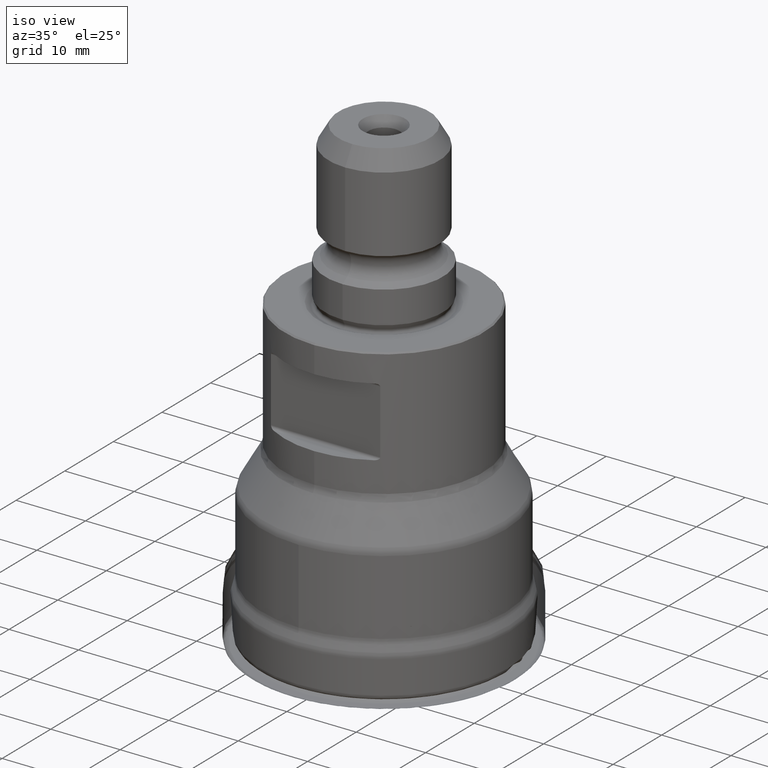
[diagram: clean part render]
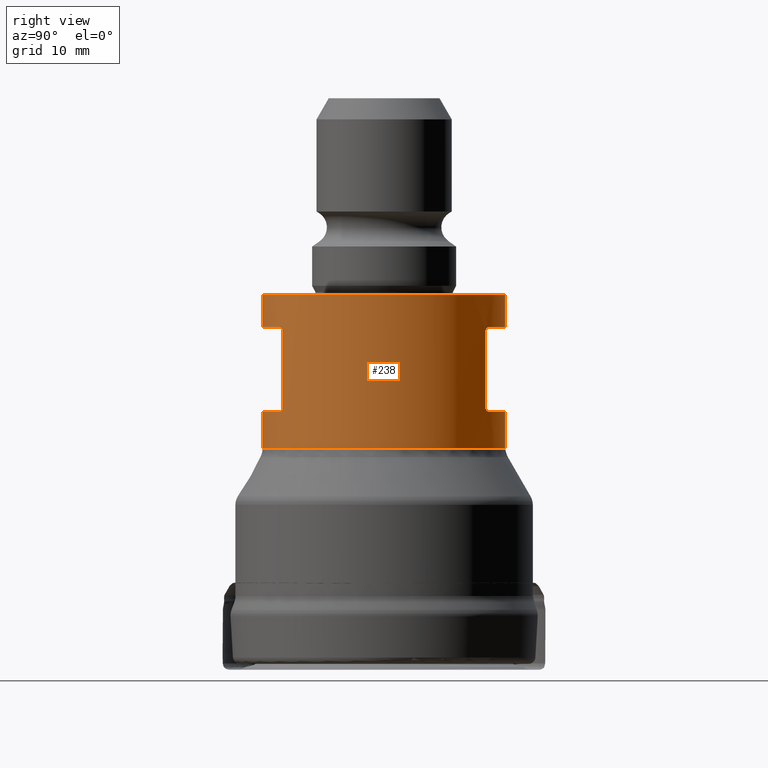
[diagram: tour spotlight — one face highlighted and labeled with its STEP entity id]
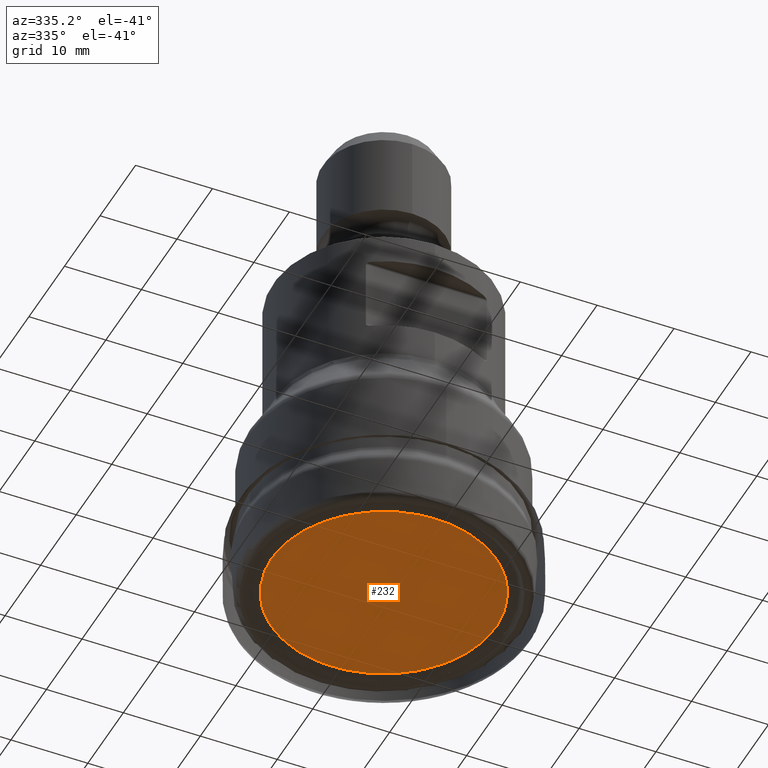
[diagram: tour spotlight — one face highlighted and labeled with its STEP entity id]
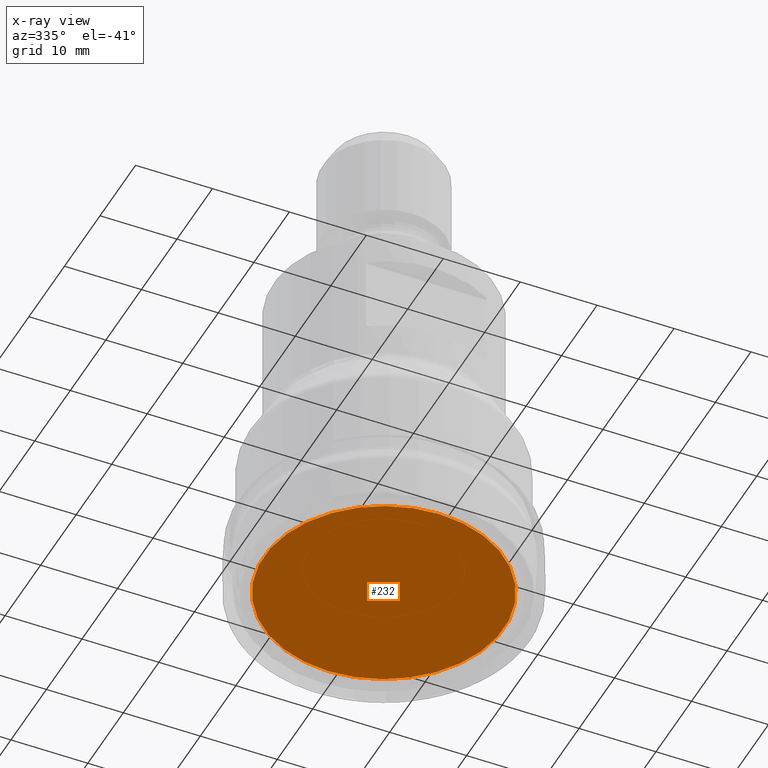
[diagram: x-ray of the same camera — body ghosted, this tour face saturated]
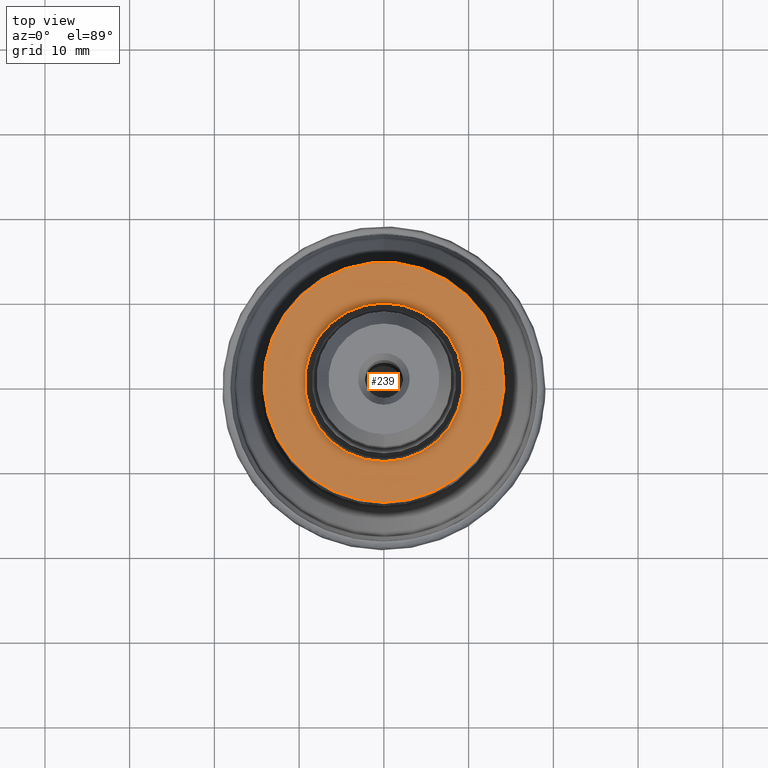
[diagram: tour spotlight — one face highlighted and labeled with its STEP entity id]
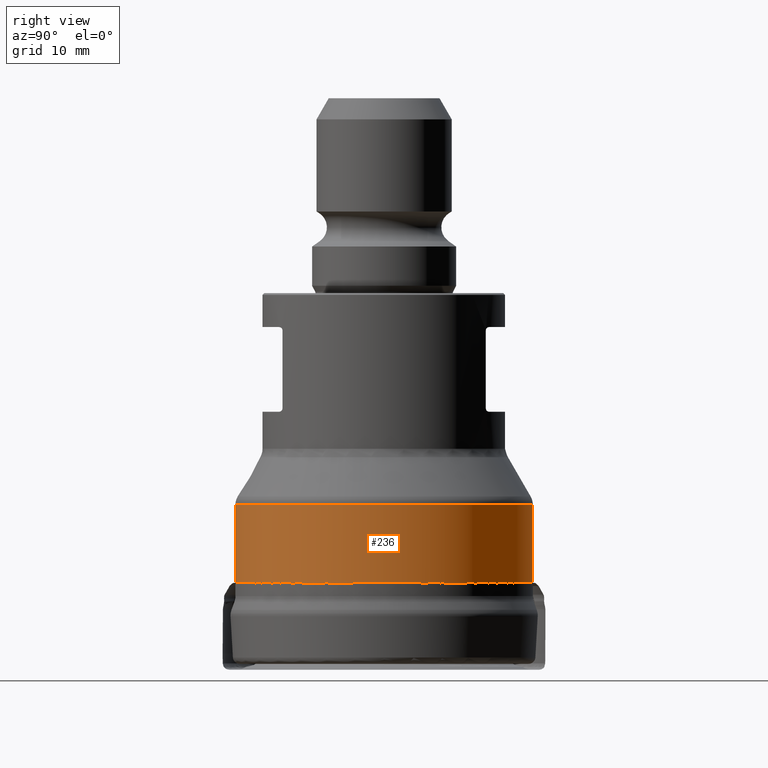
[diagram: tour spotlight — one face highlighted and labeled with its STEP entity id]
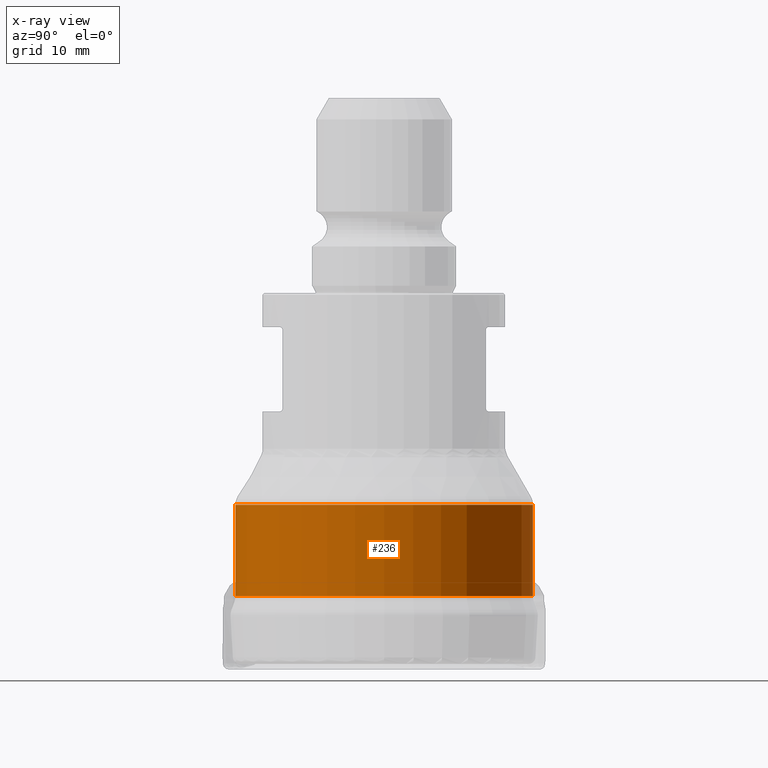
[diagram: x-ray of the same camera — body ghosted, this tour face saturated]
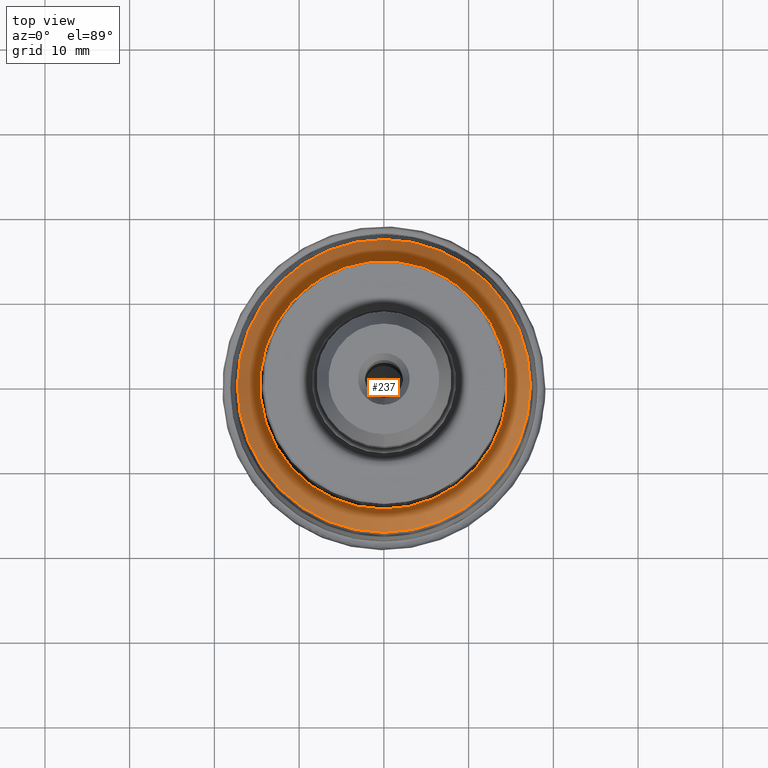
[diagram: tour spotlight — one face highlighted and labeled with its STEP entity id]
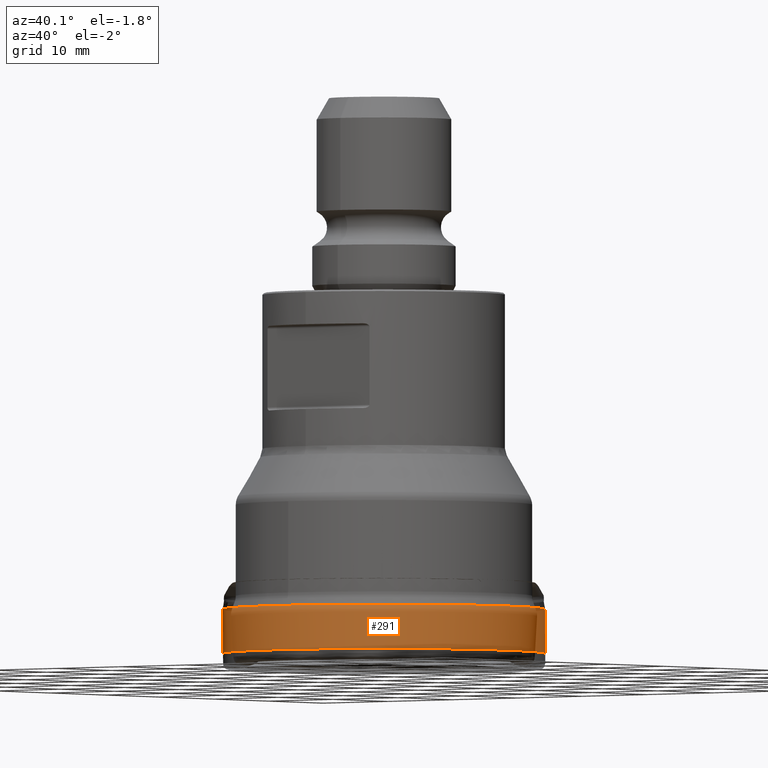
[diagram: tour spotlight — one face highlighted and labeled with its STEP entity id]
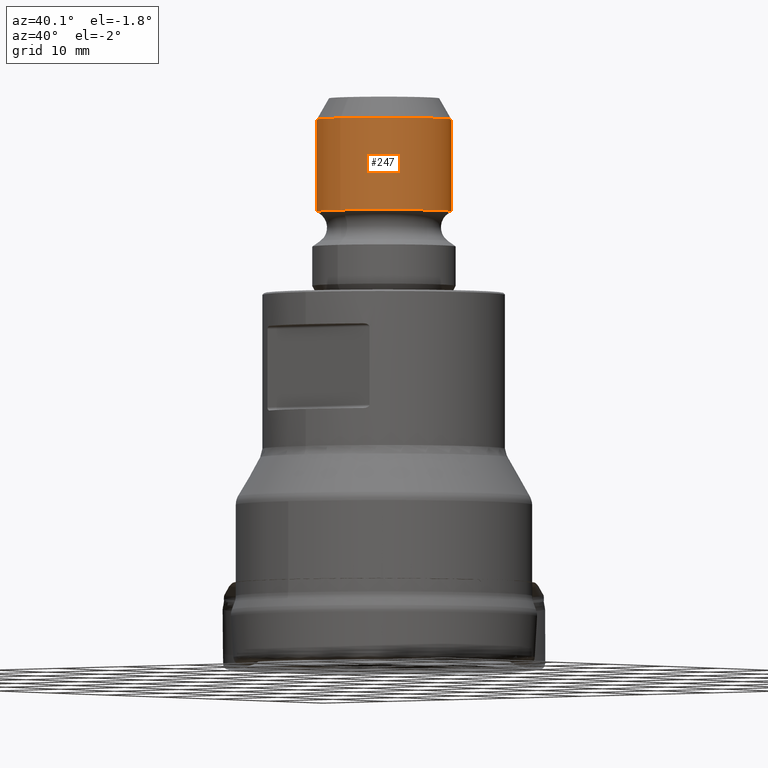
[diagram: tour spotlight — one face highlighted and labeled with its STEP entity id]
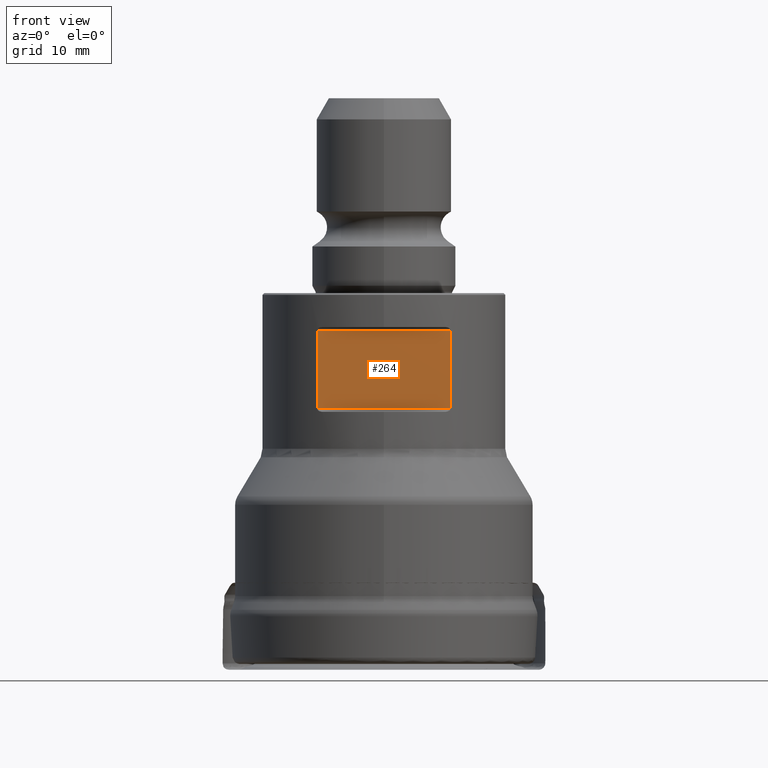
[diagram: tour spotlight — one face highlighted and labeled with its STEP entity id]
A machine part: a face-by-face anatomy tour. The part has 66 B-rep faces; the first image is the clean iso view, then the 8 largest visible faces are spotlighted one at a time (largest first), each with its STEP entity span.

Face 1 — right view, entity #238. In plain terms, the highlighted cylindrical surface (bore or boss wall) has radius 14.351 mm, axis along (0, 0, 1).
Definition (entity closure, byte-faithful):
#179=LINE('',#1596,#194);
#180=LINE('',#1637,#195);
#181=LINE('',#1678,#196);
#182=LINE('',#1719,#197);
#194=VECTOR('',#1106,1.);
#195=VECTOR('',#1109,1.);
#196=VECTOR('',#1112,1.);
#197=VECTOR('',#1115,1.);
#210=CYLINDRICAL_SURFACE('',#991,14.351);
#238=ADVANCED_FACE('',(#320,#321,#322,#323),#210,.T.);
#320=FACE_BOUND('',#434,.T.);
#321=FACE_BOUND('',#435,.T.);
#322=FACE_BOUND('',#436,.T.);
#323=FACE_BOUND('',#437,.T.);
#434=EDGE_LOOP('',(#556,#557,#558,#559,#560,#561,#562,#563));
#435=EDGE_LOOP('',(#564,#565,#566,#567,#568,#569,#570,#571));
#436=EDGE_LOOP('',(#572));
#437=EDGE_LOOP('',(#573));
#556=ORIENTED_EDGE('',*,*,#787,.F.);
#557=ORIENTED_EDGE('',*,*,#788,.F.);
#558=ORIENTED_EDGE('',*,*,#789,.F.);
#559=ORIENTED_EDGE('',*,*,#790,.F.);
#560=ORIENTED_EDGE('',*,*,#791,.F.);
#561=ORIENTED_EDGE('',*,*,#792,.F.);
#562=ORIENTED_EDGE('',*,*,#793,.F.);
#563=ORIENTED_EDGE('',*,*,#794,.F.);
#564=ORIENTED_EDGE('',*,*,#795,.F.);
#565=ORIENTED_EDGE('',*,*,#796,.F.);
#566=ORIENTED_EDGE('',*,*,#797,.F.);
#567=ORIENTED_EDGE('',*,*,#798,.F.);
#568=ORIENTED_EDGE('',*,*,#799,.F.);
#569=ORIENTED_EDGE('',*,*,#800,.F.);
#570=ORIENTED_EDGE('',*,*,#801,.F.);
#571=ORIENTED_EDGE('',*,*,#802,.F.);
#572=ORIENTED_EDGE('',*,*,#803,.T.);
#573=ORIENTED_EDGE('',*,*,#804,.T.);
#714=VERTEX_POINT('',#1594);
#715=VERTEX_POINT('',#1595);
#716=VERTEX_POINT('',#1597);
#717=VERTEX_POINT('',#1617);
#718=VERTEX_POINT('',#1619);
#719=VERTEX_POINT('',#1636);
#720=VERTEX_POINT('',#1638);
#721=VERTEX_POINT('',#1658);
#722=VERTEX_POINT('',#1676);
#723=VERTEX_POINT('',#1677);
#724=VERTEX_POINT('',#1679);
#725=VERTEX_POINT('',#1699);
#726=VERTEX_POINT('',#1701);
#727=VERTEX_POINT('',#1718);
#728=VERTEX_POINT('',#1720);
#729=VERTEX_POINT('',#1740);
#730=VERTEX_POINT('',#1743);
#731=VERTEX_POINT('',#1745);
#787=EDGE_CURVE('',#714,#715,#937,.T.);
#788=EDGE_CURVE('',#716,#714,#179,.T.);
#789=EDGE_CURVE('',#717,#716,#938,.T.);
#790=EDGE_CURVE('',#718,#717,#866,.T.);
#791=EDGE_CURVE('',#719,#718,#939,.T.);
#792=EDGE_CURVE('',#720,#719,#180,.T.);
#793=EDGE_CURVE('',#721,#720,#940,.T.);
#794=EDGE_CURVE('',#715,#721,#867,.T.);
#795=EDGE_CURVE('',#722,#723,#941,.T.);
#796=EDGE_CURVE('',#724,#722,#181,.T.);
#797=EDGE_CURVE('',#725,#724,#942,.T.);
#798=EDGE_CURVE('',#726,#725,#868,.T.);
#799=EDGE_CURVE('',#727,#726,#943,.T.);
#800=EDGE_CURVE('',#728,#727,#182,.T.);
#801=EDGE_CURVE('',#729,#728,#944,.T.);
#802=EDGE_CURVE('',#723,#729,#869,.T.);
#803=EDGE_CURVE('',#730,#730,#870,.T.);
#804=EDGE_CURVE('',#731,#731,#871,.T.);
#866=CIRCLE('',#985,14.351);
#867=CIRCLE('',#986,14.351);
#868=CIRCLE('',#987,14.351);
#869=CIRCLE('',#988,14.351);
#870=CIRCLE('',#989,14.351);
#871=CIRCLE('',#990,14.351);
#937=B_SPLINE_CURVE_WITH_KNOTS('',3,(#1578,#1579,#1580,#1581,#1582,#1583,
#1584,#1585,#1586,#1587,#1588,#1589,#1590,#1591,#1592,#1593),
 .UNSPECIFIED.,.F.,.F.,(4,3,3,3,3,4),(0.,0.0829971058057202,0.165298494452553,
0.304093107345202,0.539202657462015,1.),.UNSPECIFIED.);
#938=B_SPLINE_CURVE_WITH_KNOTS('',3,(#1598,#1599,#1600,#1601,#1602,#1603,
#1604,#1605,#1606,#1607,#1608,#1609,#1610,#1611,#1612,#1613,#1614,#1615,
#1616),.UNSPECIFIED.,.F.,.F.,(4,3,3,3,3,3,4),(0.,0.435512366815006,0.601766218517153,
0.769567222104373,0.872602562670462,0.96029760340768,1.),.UNSPECIFIED.);
#939=B_SPLINE_CURVE_WITH_KNOTS('',3,(#1620,#1621,#1622,#1623,#1624,#1625,
#1626,#1627,#1628,#1629,#1630,#1631,#1632,#1633,#1634,#1635),
 .UNSPECIFIED.,.F.,.F.,(4,3,3,3,3,4),(0.,0.0829971058057228,0.16529849445256,
0.304093107345228,0.539202657462062,1.),.UNSPECIFIED.);
#940=B_SPLINE_CURVE_WITH_KNOTS('',3,(#1639,#1640,#1641,#1642,#1643,#1644,
#1645,#1646,#1647,#1648,#1649,#1650,#1651,#1652,#1653,#1654,#1655,#1656,
#1657),.UNSPECIFIED.,.F.,.F.,(4,3,3,3,3,3,4),(0.,0.435512366814994,0.601766218517142,
0.769567222104363,0.872602562670449,0.960297603407666,1.),.UNSPECIFIED.);
#941=B_SPLINE_CURVE_WITH_KNOTS('',3,(#1660,#1661,#1662,#1663,#1664,#1665,
#1666,#1667,#1668,#1669,#1670,#1671,#1672,#1673,#1674,#1675),
 .UNSPECIFIED.,.F.,.F.,(4,3,3,3,3,4),(0.,0.0829971058057194,0.165298494452553,
0.304093107345207,0.539202657462025,1.),.UNSPECIFIED.);
#942=B_SPLINE_CURVE_WITH_KNOTS('',3,(#1680,#1681,#1682,#1683,#1684,#1685,
#1686,#1687,#1688,#1689,#1690,#1691,#1692,#1693,#1694,#1695,#1696,#1697,
#1698),.UNSPECIFIED.,.F.,.F.,(4,3,3,3,3,3,4),(0.,0.435512366815006,0.601766218517161,
0.769567222104385,0.872602562670471,0.960297603407687,1.),.UNSPECIFIED.);
#943=B_SPLINE_CURVE_WITH_KNOTS('',3,(#1702,#1703,#1704,#1705,#1706,#1707,
#1708,#1709,#1710,#1711,#1712,#1713,#1714,#1715,#1716,#1717),
 .UNSPECIFIED.,.F.,.F.,(4,3,3,3,3,4),(0.,0.0829971058057233,0.165298494452562,
0.304093107345216,0.539202657462044,1.),.UNSPECIFIED.);
#944=B_SPLINE_CURVE_WITH_KNOTS('',3,(#1721,#1722,#1723,#1724,#1725,#1726,
#1727,#1728,#1729,#1730,#1731,#1732,#1733,#1734,#1735,#1736,#1737,#1738,
#1739),.UNSPECIFIED.,.F.,.F.,(4,3,3,3,3,3,4),(0.,0.435512366814993,0.601766218517143,
0.769567222104368,0.872602562670451,0.960297603407662,1.),.UNSPECIFIED.);
#985=AXIS2_PLACEMENT_3D('',#1618,#1107,#1108);
#986=AXIS2_PLACEMENT_3D('',#1659,#1110,#1111);
#987=AXIS2_PLACEMENT_3D('',#1700,#1113,#1114);
#988=AXIS2_PLACEMENT_3D('',#1741,#1116,#1117);
#989=AXIS2_PLACEMENT_3D('',#1742,#1118,#1119);
#990=AXIS2_PLACEMENT_3D('',#1744,#1120,#1121);
#991=AXIS2_PLACEMENT_3D('',#1746,#1122,#1123);
#1106=DIRECTION('',(0.,-1.17145536458252E-15,-1.));
#1107=DIRECTION('',(0.,-1.17145536458252E-15,-1.));
#1108=DIRECTION('',(0.,-1.,9.67025838465226E-16));
#1109=DIRECTION('',(0.,1.17145536458252E-15,1.));
#1110=DIRECTION('',(0.,1.17145536458252E-15,1.));
#1111=DIRECTION('',(0.,1.,-1.20878229808153E-15));
#1112=DIRECTION('',(0.,-1.17145536458252E-15,-1.));
#1113=DIRECTION('',(0.,-1.17145536458252E-15,-1.));
#1114=DIRECTION('',(0.,-1.,9.67025838465226E-16));
#1115=DIRECTION('',(0.,1.17145536458252E-15,1.));
#1116=DIRECTION('',(0.,1.17145536458252E-15,1.));
#1117=DIRECTION('',(0.,1.,-1.20878229808153E-15));
#1118=DIRECTION('',(0.,-1.17145536458252E-15,-1.));
#1119=DIRECTION('',(0.,-1.,9.67025838465226E-16));
#1120=DIRECTION('',(0.,1.17145536458252E-15,1.));
#1121=DIRECTION('',(0.,-1.,1.20878229808153E-15));
#1122=DIRECTION('',(0.,1.17145536458252E-15,1.));
#1123=DIRECTION('',(0.,-1.,1.17145536458252E-15));
#1578=CARTESIAN_POINT('',(7.87090852443352,12.,30.85));
#1579=CARTESIAN_POINT('',(7.87090852443352,12.,30.8240322290177));
#1580=CARTESIAN_POINT('',(7.86687749301789,12.0026461944081,30.7977413843242));
#1581=CARTESIAN_POINT('',(7.85957575356462,12.0074256180907,30.7732839347432));
#1582=CARTESIAN_POINT('',(7.8523090087322,12.0121821357081,30.7489437009545));
#1583=CARTESIAN_POINT('',(7.84173683060234,12.0190927297264,30.725826348514));
#1584=CARTESIAN_POINT('',(7.82914982339087,12.0272862293578,30.7047951613284));
#1585=CARTESIAN_POINT('',(7.80804791983691,12.0410224921632,30.6695367336369));
#1586=CARTESIAN_POINT('',(7.78087951408832,12.0586206559712,30.6391084719029));
#1587=CARTESIAN_POINT('',(7.75151901647613,12.0774647147988,30.613418111851));
#1588=CARTESIAN_POINT('',(7.70195909105648,12.1092731045078,30.5700533043128));
#1589=CARTESIAN_POINT('',(7.64468901891067,12.1455636071234,30.5382902735915));
#1590=CARTESIAN_POINT('',(7.58597245533121,12.1821271913799,30.5145429397613));
#1591=CARTESIAN_POINT('',(7.47167272849779,12.2533031498795,30.4683155448944));
#1592=CARTESIAN_POINT('',(7.34735730916321,12.3283335852071,30.45));
#1593=CARTESIAN_POINT('',(7.22434779063137,12.4,30.45));
#1594=CARTESIAN_POINT('',(7.87090852443352,12.,30.85));
#1595=CARTESIAN_POINT('',(7.22434779063137,12.4,30.45));
#1596=CARTESIAN_POINT('',(7.87090852443351,12.,-1.19757962038181E-14));
#1597=CARTESIAN_POINT('',(7.87090852443352,12.,40.05));
#1598=CARTESIAN_POINT('',(7.22434779063137,12.4,40.45));
#1599=CARTESIAN_POINT('',(7.34073896794431,12.3321894883331,40.45));
#1600=CARTESIAN_POINT('',(7.45806175716986,12.2615252914713,40.4334933739461));
#1601=CARTESIAN_POINT('',(7.56716152291767,12.1938208731339,40.3927683877559));
#1602=CARTESIAN_POINT('',(7.60922910680053,12.1677148473498,40.3770653130432));
#1603=CARTESIAN_POINT('',(7.65038818931735,12.1418638913689,40.3575197134806));
#1604=CARTESIAN_POINT('',(7.68905559151899,12.117327473933,40.3330127965426));
#1605=CARTESIAN_POINT('',(7.72792286213209,12.0926642299068,40.3083792054999));
#1606=CARTESIAN_POINT('',(7.76498824079194,12.0688659768356,40.2782809305083));
#1607=CARTESIAN_POINT('',(7.79603384607914,12.0487782480544,40.2414243478773));
#1608=CARTESIAN_POINT('',(7.81516799510663,12.036397700387,40.2187087545371));
#1609=CARTESIAN_POINT('',(7.83226831836126,12.0252656100682,40.1929753481524));
#1610=CARTESIAN_POINT('',(7.84521353459981,12.0168142865126,40.164754995443));
#1611=CARTESIAN_POINT('',(7.85621846575662,12.0096296839382,40.1407644314335));
#1612=CARTESIAN_POINT('',(7.86436481375197,12.004290418292,40.1143991819155));
#1613=CARTESIAN_POINT('',(7.86823088391459,12.0017558614318,40.0874380300775));
#1614=CARTESIAN_POINT('',(7.8700010488916,12.0005953590102,40.0750932756587));
#1615=CARTESIAN_POINT('',(7.87090852443368,12.,40.0625249036555));
#1616=CARTESIAN_POINT('',(7.87090852443369,12.,40.05));
#1617=CARTESIAN_POINT('',(7.22434779063137,12.4,40.45));
#1618=CARTESIAN_POINT('',(0.,4.73853694973631E-14,40.45));
#1619=CARTESIAN_POINT('',(-7.22434779063131,12.4000000000001,40.45));
#1620=CARTESIAN_POINT('',(-7.87090852443347,12.0000000000001,40.05));
#1621=CARTESIAN_POINT('',(-7.87090852443347,12.0000000000001,40.0759677709822));
#1622=CARTESIAN_POINT('',(-7.86687749301785,12.0026461944081,40.1022586156758));
#1623=CARTESIAN_POINT('',(-7.85957575356457,12.0074256180907,40.1267160652568));
#1624=CARTESIAN_POINT('',(-7.85230900873216,12.0121821357081,40.1510562990454));
#1625=CARTESIAN_POINT('',(-7.84173683060229,12.0190927297265,40.174173651486));
#1626=CARTESIAN_POINT('',(-7.82914982339081,12.0272862293578,40.1952048386716));
#1627=CARTESIAN_POINT('',(-7.80804791983685,12.0410224921633,40.230463266363));
#1628=CARTESIAN_POINT('',(-7.78087951408825,12.0586206559712,40.2608915280971));
#1629=CARTESIAN_POINT('',(-7.75151901647606,12.0774647147988,40.286581888149));
#1630=CARTESIAN_POINT('',(-7.7019590910564,12.1092731045079,40.3299466956872));
#1631=CARTESIAN_POINT('',(-7.64468901891059,12.1455636071234,40.3617097264085));
#1632=CARTESIAN_POINT('',(-7.58597245533112,12.1821271913799,40.3854570602387));
#1633=CARTESIAN_POINT('',(-7.47167272849771,12.2533031498795,40.4316844551055));
#1634=CARTESIAN_POINT('',(-7.34735730916314,12.3283335852072,40.45));
#1635=CARTESIAN_POINT('',(-7.22434779063131,12.4000000000001,40.45));
#1636=CARTESIAN_POINT('',(-7.87090852443347,12.0000000000001,40.05));
#1637=CARTESIAN_POINT('',(-7.87090852443346,12.,-1.19757962038181E-14));
#1638=CARTESIAN_POINT('',(-7.87090852443347,12.0000000000001,30.85));
#1639=CARTESIAN_POINT('',(-7.22434779063131,12.4000000000001,30.45));
#1640=CARTESIAN_POINT('',(-7.34073896794426,12.3321894883331,30.45));
#1641=CARTESIAN_POINT('',(-7.45806175716981,12.2615252914713,30.4665066260539));
#1642=CARTESIAN_POINT('',(-7.56716152291761,12.1938208731339,30.507231612244));
#1643=CARTESIAN_POINT('',(-7.60922910680047,12.1677148473498,30.5229346869568));
#1644=CARTESIAN_POINT('',(-7.65038818931729,12.1418638913689,30.5424802865194));
#1645=CARTESIAN_POINT('',(-7.68905559151893,12.117327473933,30.5669872034573));
#1646=CARTESIAN_POINT('',(-7.72792286213204,12.0926642299068,30.5916207945001));
#1647=CARTESIAN_POINT('',(-7.76498824079189,12.0688659768356,30.6217190694917));
#1648=CARTESIAN_POINT('',(-7.79603384607909,12.0487782480544,30.6585756521227));
#1649=CARTESIAN_POINT('',(-7.81516799510658,12.036397700387,30.6812912454629));
#1650=CARTESIAN_POINT('',(-7.83226831836121,12.0252656100682,30.7070246518476));
#1651=CARTESIAN_POINT('',(-7.84521353459976,12.0168142865126,30.735245004557));
#1652=CARTESIAN_POINT('',(-7.85621846575656,12.0096296839382,30.7592355685665));
#1653=CARTESIAN_POINT('',(-7.86436481375192,12.0042904182921,30.7856008180844));
#1654=CARTESIAN_POINT('',(-7.86823088391453,12.0017558614319,30.8125619699225));
#1655=CARTESIAN_POINT('',(-7.87000104889154,12.0005953590102,30.8249067243413));
#1656=CARTESIAN_POINT('',(-7.87090852443346,12.0000000000001,30.8374750963445));
#1657=CARTESIAN_POINT('',(-7.87090852443347,12.0000000000001,30.85));
#1658=CARTESIAN_POINT('',(-7.22434779063131,12.4000000000001,30.45));
#1659=CARTESIAN_POINT('',(0.,3.56708158515379E-14,30.45));
#1660=CARTESIAN_POINT('',(-7.87090852443349,-12.,30.85));
#1661=CARTESIAN_POINT('',(-7.87090852443349,-12.,30.8240322290178));
#1662=CARTESIAN_POINT('',(-7.86687749301787,-12.002646194408,30.7977413843242));
#1663=CARTESIAN_POINT('',(-7.85957575356459,-12.0074256180906,30.7732839347432));
#1664=CARTESIAN_POINT('',(-7.85230900873218,-12.012182135708,30.7489437009546));
#1665=CARTESIAN_POINT('',(-7.84173683060232,-12.0190927297264,30.7258263485141));
#1666=CARTESIAN_POINT('',(-7.82914982339084,-12.0272862293577,30.7047951613284));
#1667=CARTESIAN_POINT('',(-7.80804791983688,-12.0410224921632,30.669536733637));
#1668=CARTESIAN_POINT('',(-7.78087951408829,-12.0586206559711,30.6391084719029));
#1669=CARTESIAN_POINT('',(-7.7515190164761,-12.0774647147987,30.613418111851));
#1670=CARTESIAN_POINT('',(-7.70195909105645,-12.1092731045078,30.5700533043128));
#1671=CARTESIAN_POINT('',(-7.64468901891063,-12.1455636071233,30.5382902735915));
#1672=CARTESIAN_POINT('',(-7.58597245533117,-12.1821271913798,30.5145429397613));
#1673=CARTESIAN_POINT('',(-7.47167272849776,-12.2533031498794,30.4683155448945));
#1674=CARTESIAN_POINT('',(-7.34735730916317,-12.3283335852071,30.45));
#1675=CARTESIAN_POINT('',(-7.22434779063134,-12.4,30.45));
#1676=CARTESIAN_POINT('',(-7.87090852443349,-12.,30.85));
#1677=CARTESIAN_POINT('',(-7.22434779063134,-12.4,30.45));
#1678=CARTESIAN_POINT('',(-7.87090852443348,-12.,1.61391325461625E-14));
#1679=CARTESIAN_POINT('',(-7.87090852443349,-12.,40.05));
#1680=CARTESIAN_POINT('',(-7.22434779063134,-12.4,40.45));
#1681=CARTESIAN_POINT('',(-7.34073896794428,-12.332189488333,40.45));
#1682=CARTESIAN_POINT('',(-7.45806175716983,-12.2615252914712,40.4334933739461));
#1683=CARTESIAN_POINT('',(-7.56716152291764,-12.1938208731338,40.392768387756));
#1684=CARTESIAN_POINT('',(-7.6092291068005,-12.1677148473497,40.3770653130432));
#1685=CARTESIAN_POINT('',(-7.65038818931732,-12.1418638913688,40.3575197134806));
#1686=CARTESIAN_POINT('',(-7.68905559151896,-12.1173274739329,40.3330127965427));
#1687=CARTESIAN_POINT('',(-7.72792286213207,-12.0926642299067,40.3083792054999));
#1688=CARTESIAN_POINT('',(-7.76498824079192,-12.0688659768355,40.2782809305083));
#1689=CARTESIAN_POINT('',(-7.79603384607912,-12.0487782480543,40.2414243478773));
#1690=CARTESIAN_POINT('',(-7.81516799510661,-12.0363977003869,40.2187087545371));
#1691=CARTESIAN_POINT('',(-7.83226831836124,-12.0252656100681,40.1929753481524));
#1692=CARTESIAN_POINT('',(-7.84521353459979,-12.0168142865125,40.164754995443));
#1693=CARTESIAN_POINT('',(-7.85621846575659,-12.0096296839381,40.1407644314335));
#1694=CARTESIAN_POINT('',(-7.86436481375195,-12.004290418292,40.1143991819156));
#1695=CARTESIAN_POINT('',(-7.86823088391456,-12.0017558614318,40.0874380300776));
#1696=CARTESIAN_POINT('',(-7.87000104889157,-12.0005953590101,40.0750932756587));
#1697=CARTESIAN_POINT('',(-7.87090852443366,-11.9999999999999,40.0625249036555));
#1698=CARTESIAN_POINT('',(-7.87090852443366,-11.9999999999999,40.0500000000001));
#1699=CARTESIAN_POINT('',(-7.22434779063134,-12.4,40.45));
#1700=CARTESIAN_POINT('',(0.,4.73853694973631E-14,40.45));
#1701=CARTESIAN_POINT('',(7.22434779063134,-12.4,40.45));
#1702=CARTESIAN_POINT('',(7.8709085244335,-12.,40.05));
#1703=CARTESIAN_POINT('',(7.8709085244335,-12.,40.0759677709823));
#1704=CARTESIAN_POINT('',(7.86687749301787,-12.002646194408,40.1022586156759));
#1705=CARTESIAN_POINT('',(7.8595757535646,-12.0074256180906,40.1267160652568));
#1706=CARTESIAN_POINT('',(7.85230900873218,-12.012182135708,40.1510562990455));
#1707=CARTESIAN_POINT('',(7.84173683060232,-12.0190927297263,40.174173651486));
#1708=CARTESIAN_POINT('',(7.82914982339084,-12.0272862293577,40.1952048386716));
#1709=CARTESIAN_POINT('',(7.80804791983688,-12.0410224921632,40.2304632663631));
#1710=CARTESIAN_POINT('',(7.78087951408829,-12.0586206559711,40.2608915280971));
#1711=CARTESIAN_POINT('',(7.7515190164761,-12.0774647147987,40.2865818881491));
#1712=CARTESIAN_POINT('',(7.70195909105644,-12.1092731045078,40.3299466956872));
#1713=CARTESIAN_POINT('',(7.64468901891063,-12.1455636071233,40.3617097264085));
#1714=CARTESIAN_POINT('',(7.58597245533117,-12.1821271913798,40.3854570602387));
#1715=CARTESIAN_POINT('',(7.47167272849776,-12.2533031498794,40.4316844551056));
#1716=CARTESIAN_POINT('',(7.34735730916317,-12.328333585207,40.45));
#1717=CARTESIAN_POINT('',(7.22434779063134,-12.4,40.45));
#1718=CARTESIAN_POINT('',(7.8709085244335,-12.,40.05));
#1719=CARTESIAN_POINT('',(7.87090852443349,-12.,1.61391325461625E-14));
#1720=CARTESIAN_POINT('',(7.87090852443349,-12.,30.85));
#1721=CARTESIAN_POINT('',(7.22434779063134,-12.4,30.45));
#1722=CARTESIAN_POINT('',(7.34073896794429,-12.332189488333,30.45));
#1723=CARTESIAN_POINT('',(7.45806175716984,-12.2615252914712,30.4665066260539));
#1724=CARTESIAN_POINT('',(7.56716152291764,-12.1938208731338,30.5072316122441));
#1725=CARTESIAN_POINT('',(7.6092291068005,-12.1677148473497,30.5229346869568));
#1726=CARTESIAN_POINT('',(7.65038818931732,-12.1418638913688,30.5424802865194));
#1727=CARTESIAN_POINT('',(7.68905559151896,-12.1173274739329,30.5669872034574));
#1728=CARTESIAN_POINT('',(7.72792286213207,-12.0926642299068,30.5916207945001));
#1729=CARTESIAN_POINT('',(7.76498824079192,-12.0688659768355,30.6217190694917));
#1730=CARTESIAN_POINT('',(7.79603384607912,-12.0487782480544,30.6585756521227));
#1731=CARTESIAN_POINT('',(7.81516799510661,-12.0363977003869,30.6812912454629));
#1732=CARTESIAN_POINT('',(7.83226831836124,-12.0252656100681,30.7070246518476));
#1733=CARTESIAN_POINT('',(7.84521353459979,-12.0168142865125,30.735245004557));
#1734=CARTESIAN_POINT('',(7.85621846575659,-12.0096296839381,30.7592355685666));
#1735=CARTESIAN_POINT('',(7.86436481375195,-12.004290418292,30.7856008180845));
#1736=CARTESIAN_POINT('',(7.86823088391456,-12.0017558614318,30.8125619699225));
#1737=CARTESIAN_POINT('',(7.87000104889157,-12.0005953590101,30.8249067243413));
#1738=CARTESIAN_POINT('',(7.87090852443349,-12.,30.8374750963446));
#1739=CARTESIAN_POINT('',(7.87090852443349,-12.,30.85));
#1740=CARTESIAN_POINT('',(7.22434779063134,-12.4,30.45));
#1741=CARTESIAN_POINT('',(0.,3.56708158515379E-14,30.45));
#1742=CARTESIAN_POINT('',(0.,5.18368998827767E-14,44.25));
#1743=CARTESIAN_POINT('',(0.,-14.3509999999999,44.25));
#1744=CARTESIAN_POINT('',(0.,3.05477239820776E-14,26.0767289182751));
#1745=CARTESIAN_POINT('',(0.,-14.351,26.0767289182751));
#1746=CARTESIAN_POINT('',(0.,0.,0.));

Face 2 — auxiliary view, entity #232. An x-ray twin of the same camera follows (body ghosted, this face saturated) — the face is partly hidden behind the body. In plain terms, the highlighted planar face has unit normal (0, -0, -1).
Definition (entity closure, byte-faithful):
#232=ADVANCED_FACE('',(#308,#309),#298,.T.);
#298=PLANE('',#969);
#308=FACE_BOUND('',#422,.T.);
#309=FACE_BOUND('',#423,.T.);
#422=EDGE_LOOP('',(#544));
#423=EDGE_LOOP('',(#545));
#544=ORIENTED_EDGE('',*,*,#775,.T.);
#545=ORIENTED_EDGE('',*,*,#776,.T.);
#702=VERTEX_POINT('',#1549);
#703=VERTEX_POINT('',#1551);
#775=EDGE_CURVE('',#702,#702,#854,.T.);
#776=EDGE_CURVE('',#703,#703,#855,.T.);
#854=CIRCLE('',#967,1.);
#855=CIRCLE('',#968,15.5849874975539);
#967=AXIS2_PLACEMENT_3D('',#1548,#1070,#1071);
#968=AXIS2_PLACEMENT_3D('',#1550,#1072,#1073);
#969=AXIS2_PLACEMENT_3D('',#1552,#1074,#1075);
#1070=DIRECTION('',(0.,1.17145536458252E-15,1.));
#1071=DIRECTION('',(0.,-1.,1.0842021724855E-15));
#1072=DIRECTION('',(0.,-1.17145536458252E-15,-1.));
#1073=DIRECTION('',(0.,1.,-1.16872705227484E-15));
#1074=DIRECTION('',(0.,-1.17145536458252E-15,-1.));
#1075=DIRECTION('',(0.,1.,-1.17137202715334E-15));
#1548=CARTESIAN_POINT('',(0.,1.28860090104078E-15,1.1));
#1549=CARTESIAN_POINT('',(0.,-0.999999999999999,1.1));
#1550=CARTESIAN_POINT('',(0.,1.28860090104078E-15,1.1));
#1551=CARTESIAN_POINT('',(0.,15.5849874975539,1.09999999999998));
#1552=CARTESIAN_POINT('',(16.2047914002725,1.28860090104078E-15,1.1));

Face 3 — top view, entity #239. In plain terms, the highlighted planar face has unit normal (0, 0, 1).
Definition (entity closure, byte-faithful):
#239=ADVANCED_FACE('',(#324,#325),#300,.T.);
#300=PLANE('',#994);
#324=FACE_BOUND('',#438,.T.);
#325=FACE_BOUND('',#439,.T.);
#438=EDGE_LOOP('',(#574));
#439=EDGE_LOOP('',(#575));
#574=ORIENTED_EDGE('',*,*,#805,.T.);
#575=ORIENTED_EDGE('',*,*,#806,.F.);
#732=VERTEX_POINT('',#1748);
#733=VERTEX_POINT('',#1750);
#805=EDGE_CURVE('',#732,#732,#872,.T.);
#806=EDGE_CURVE('',#733,#733,#873,.T.);
#872=CIRCLE('',#992,14.151);
#873=CIRCLE('',#993,9.36627222808008);
#992=AXIS2_PLACEMENT_3D('',#1747,#1124,#1125);
#993=AXIS2_PLACEMENT_3D('',#1749,#1126,#1127);
#994=AXIS2_PLACEMENT_3D('',#1751,#1128,#1129);
#1124=DIRECTION('',(0.,1.17145536458252E-15,1.));
#1125=DIRECTION('',(0.,-1.,9.80693082313226E-16));
#1126=DIRECTION('',(0.,1.17145536458252E-15,1.));
#1127=DIRECTION('',(0.,-1.,1.48167675141972E-15));
#1128=DIRECTION('',(0.,1.17145536458252E-15,1.));
#1129=DIRECTION('',(0.,-1.,1.17267306976032E-15));
#1747=CARTESIAN_POINT('',(0.,5.20711909556932E-14,44.45));
#1748=CARTESIAN_POINT('',(0.,-14.1509999999999,44.45));
#1749=CARTESIAN_POINT('',(0.,5.20711909556932E-14,44.45));
#1750=CARTESIAN_POINT('',(0.,-9.36627222808003,44.45));
#1751=CARTESIAN_POINT('',(9.36627222808008,5.20711909556932E-14,44.45));

Face 4 — right view, entity #236. An x-ray twin of the same camera follows (body ghosted, this face saturated) — the face is partly hidden behind the body. In plain terms, the highlighted cylindrical surface (bore or boss wall) has radius 17.55 mm, axis along (0, 0, 1).
Definition (entity closure, byte-faithful):
#209=CYLINDRICAL_SURFACE('',#981,17.55);
#236=ADVANCED_FACE('',(#316,#317),#209,.T.);
#316=FACE_BOUND('',#430,.T.);
#317=FACE_BOUND('',#431,.T.);
#430=EDGE_LOOP('',(#552));
#431=EDGE_LOOP('',(#553));
#552=ORIENTED_EDGE('',*,*,#783,.T.);
#553=ORIENTED_EDGE('',*,*,#784,.T.);
#710=VERTEX_POINT('',#1569);
#711=VERTEX_POINT('',#1571);
#783=EDGE_CURVE('',#710,#710,#862,.T.);
#784=EDGE_CURVE('',#711,#711,#863,.T.);
#862=CIRCLE('',#979,17.55);
#863=CIRCLE('',#980,17.55);
#979=AXIS2_PLACEMENT_3D('',#1568,#1094,#1095);
#980=AXIS2_PLACEMENT_3D('',#1570,#1096,#1097);
#981=AXIS2_PLACEMENT_3D('',#1572,#1098,#1099);
#1094=DIRECTION('',(0.,-1.17145536458252E-15,-1.));
#1095=DIRECTION('',(0.,1.,-1.18613571006961E-15));
#1096=DIRECTION('',(0.,1.17145536458252E-15,1.));
#1097=DIRECTION('',(0.,-1.,1.18613571006961E-15));
#1098=DIRECTION('',(0.,1.17145536458252E-15,1.));
#1099=DIRECTION('',(0.,-1.,1.17145536458252E-15));
#1568=CARTESIAN_POINT('',(0.,2.28013262538325E-14,19.4641016151378));
#1569=CARTESIAN_POINT('',(0.,17.55,19.4641016151377));
#1570=CARTESIAN_POINT('',(0.,1.01923876679824E-14,8.7006197386058));
#1571=CARTESIAN_POINT('',(0.,-17.55,8.70061973860582));
#1572=CARTESIAN_POINT('',(0.,0.,0.));

Face 5 — top view, entity #237. In plain terms, the highlighted conical surface has half-angle 30 deg.
Definition (entity closure, byte-faithful):
#221=CONICAL_SURFACE('',#984,14.351,30.);
#237=ADVANCED_FACE('',(#318,#319),#221,.T.);
#318=FACE_BOUND('',#432,.T.);
#319=FACE_BOUND('',#433,.T.);
#432=EDGE_LOOP('',(#554));
#433=EDGE_LOOP('',(#555));
#554=ORIENTED_EDGE('',*,*,#785,.T.);
#555=ORIENTED_EDGE('',*,*,#786,.T.);
#712=VERTEX_POINT('',#1574);
#713=VERTEX_POINT('',#1576);
#785=EDGE_CURVE('',#712,#712,#864,.T.);
#786=EDGE_CURVE('',#713,#713,#865,.T.);
#864=CIRCLE('',#982,17.2820508075689);
#865=CIRCLE('',#983,14.6189491924311);
#982=AXIS2_PLACEMENT_3D('',#1573,#1100,#1101);
#983=AXIS2_PLACEMENT_3D('',#1575,#1102,#1103);
#984=AXIS2_PLACEMENT_3D('',#1577,#1104,#1105);
#1100=DIRECTION('',(0.,1.17145536458252E-15,1.));
#1101=DIRECTION('',(0.,-1.,1.20452612618201E-15));
#1102=DIRECTION('',(0.,-1.17145536458252E-15,-1.));
#1103=DIRECTION('',(0.,1.,-1.18662665362771E-15));
#1104=DIRECTION('',(0.,-1.17145536458252E-15,-1.));
#1105=DIRECTION('',(0.,1.,-1.13165763974803E-15));
#1573=CARTESIAN_POINT('',(0.,2.3972781618415E-14,20.4641016151378));
#1574=CARTESIAN_POINT('',(0.,-17.2820508075688,20.4641016151378));
#1575=CARTESIAN_POINT('',(0.,2.93762686174951E-14,25.0767289182751));
#1576=CARTESIAN_POINT('',(0.,14.6189491924311,25.0767289182751));
#1577=CARTESIAN_POINT('',(0.,2.99199429442596E-14,25.5408305334128));

Face 6 — auxiliary view, entity #291. In plain terms, the highlighted face is a SurfaceOfRevolution surface.
Definition (entity closure, byte-faithful):
#125=SURFACE_OF_REVOLUTION('',#960,#149);
#149=AXIS1_PLACEMENT('',#1976,#1293);
#291=ADVANCED_FACE('',(#408,#409),#125,.F.);
#408=FACE_BOUND('',#530,.T.);
#409=FACE_BOUND('',#531,.T.);
#530=EDGE_LOOP('',(#688));
#531=EDGE_LOOP('',(#689));
#688=ORIENTED_EDGE('',*,*,#847,.T.);
#689=ORIENTED_EDGE('',*,*,#848,.F.);
#768=VERTEX_POINT('',#1961);
#769=VERTEX_POINT('',#1969);
#847=EDGE_CURVE('',#768,#768,#906,.T.);
#848=EDGE_CURVE('',#769,#769,#907,.T.);
#906=CIRCLE('',#1061,19.0499999999999);
#907=CIRCLE('',#1062,19.059564769401);
#960=B_SPLINE_CURVE_WITH_KNOTS('',5,(#1970,#1971,#1972,#1973,#1974,#1975),
 .UNSPECIFIED.,.F.,.F.,(6,6),(0.,1.),.UNSPECIFIED.);
#1061=AXIS2_PLACEMENT_3D('',#1960,#1288,#1289);
#1062=AXIS2_PLACEMENT_3D('',#1968,#1291,#1292);
#1288=DIRECTION('',(0.,0.,1.));
#1289=DIRECTION('',(1.,0.,0.));
#1291=DIRECTION('',(0.,0.,1.));
#1292=DIRECTION('',(1.,0.,0.));
#1293=DIRECTION('',(0.,0.,1.));
#1960=CARTESIAN_POINT('',(0.,0.,7.12924740923742));
#1961=CARTESIAN_POINT('',(19.0499999999999,0.,7.12924740923742));
#1968=CARTESIAN_POINT('',(0.,0.,1.90709903735403));
#1969=CARTESIAN_POINT('',(19.059564769401,0.,1.90709903735403));
#1970=CARTESIAN_POINT('',(18.9300009238681,-2.21857468221756,1.90709903853746));
#1971=CARTESIAN_POINT('',(18.9678548440289,-1.93878119135749,2.95111219208906));
#1972=CARTESIAN_POINT('',(18.9969904896726,-1.65892422576554,3.9954247802816));
#1973=CARTESIAN_POINT('',(19.0174554766318,-1.37902881079791,5.03994372619884));
#1974=CARTESIAN_POINT('',(19.0292600083211,-1.09911859997091,6.08458134430483));
#1975=CARTESIAN_POINT('',(19.0323771996455,-0.819217999321208,7.12924740923742));
#1976=CARTESIAN_POINT('',(0.,0.,0.));

Face 7 — auxiliary view, entity #247. In plain terms, the highlighted cylindrical surface (bore or boss wall) has radius 7.981 mm, axis along (0, 0, 1).
Definition (entity closure, byte-faithful):
#212=CYLINDRICAL_SURFACE('',#1010,7.981);
#247=ADVANCED_FACE('',(#340,#341),#212,.T.);
#340=FACE_BOUND('',#454,.T.);
#341=FACE_BOUND('',#455,.T.);
#454=EDGE_LOOP('',(#590));
#455=EDGE_LOOP('',(#591));
#590=ORIENTED_EDGE('',*,*,#814,.T.);
#591=ORIENTED_EDGE('',*,*,#813,.T.);
#740=VERTEX_POINT('',#1771);
#741=VERTEX_POINT('',#1774);
#813=EDGE_CURVE('',#740,#740,#880,.T.);
#814=EDGE_CURVE('',#741,#741,#881,.T.);
#880=CIRCLE('',#1007,7.981);
#881=CIRCLE('',#1009,7.981);
#1007=AXIS2_PLACEMENT_3D('',#1770,#1154,#1155);
#1009=AXIS2_PLACEMENT_3D('',#1773,#1158,#1159);
#1010=AXIS2_PLACEMENT_3D('',#1775,#1160,#1161);
#1154=DIRECTION('',(0.,1.17145536458252E-15,1.));
#1155=DIRECTION('',(0.,-1.,8.69426626225689E-16));
#1158=DIRECTION('',(0.,-1.17145536458252E-15,-1.));
#1159=DIRECTION('',(0.,-1.,1.73885325245138E-15));
#1160=DIRECTION('',(0.,1.17145536458252E-15,1.));
#1161=DIRECTION('',(0.,-1.,1.17145536458252E-15));
#1770=CARTESIAN_POINT('',(0.,6.33545506400049E-14,54.0819160127222));
#1771=CARTESIAN_POINT('',(0.,-7.98099999999994,54.0819160127222));
#1773=CARTESIAN_POINT('',(0.,7.60860259296349E-14,64.95));
#1774=CARTESIAN_POINT('',(0.,-7.98099999999993,64.95));
#1775=CARTESIAN_POINT('',(0.,0.,0.));

Face 8 — front view, entity #264. In plain terms, the highlighted planar face has unit normal (-0, 1, -0).
Definition (entity closure, byte-faithful):
#158=FACE_OUTER_BOUND('',#486,.T.);
#181=LINE('',#1678,#196);
#182=LINE('',#1719,#197);
#183=LINE('',#1808,#198);
#184=LINE('',#1809,#199);
#196=VECTOR('',#1112,1.);
#197=VECTOR('',#1115,1.);
#198=VECTOR('',#1208,1.);
#199=VECTOR('',#1209,1.);
#264=ADVANCED_FACE('',(#158),#302,.F.);
#302=PLANE('',#1034);
#486=EDGE_LOOP('',(#622,#623,#624,#625));
#622=ORIENTED_EDGE('',*,*,#796,.T.);
#623=ORIENTED_EDGE('',*,*,#822,.T.);
#624=ORIENTED_EDGE('',*,*,#800,.T.);
#625=ORIENTED_EDGE('',*,*,#823,.T.);
#722=VERTEX_POINT('',#1676);
#724=VERTEX_POINT('',#1679);
#727=VERTEX_POINT('',#1718);
#728=VERTEX_POINT('',#1720);
#796=EDGE_CURVE('',#724,#722,#181,.T.);
#800=EDGE_CURVE('',#728,#727,#182,.T.);
#822=EDGE_CURVE('',#722,#728,#183,.T.);
#823=EDGE_CURVE('',#727,#724,#184,.T.);
#1034=AXIS2_PLACEMENT_3D('',#1810,#1210,#1211);
#1112=DIRECTION('',(0.,-1.17145536458252E-15,-1.));
#1115=DIRECTION('',(0.,1.17145536458252E-15,1.));
#1208=DIRECTION('',(1.,1.47016425225752E-16,-1.72223180012452E-31));
#1209=DIRECTION('',(-1.,-1.47016425225752E-16,1.72223180012452E-31));
#1210=DIRECTION('',(-1.47016425225752E-16,1.,-1.3449277121802E-15));
#1211=DIRECTION('',(0.,1.34441069388203E-15,1.));
#1676=CARTESIAN_POINT('',(-7.87090852443349,-12.,30.85));
#1678=CARTESIAN_POINT('',(-7.87090852443348,-12.,1.61391325461625E-14));
#1679=CARTESIAN_POINT('',(-7.87090852443349,-12.,40.05));
#1718=CARTESIAN_POINT('',(7.8709085244335,-12.,40.05));
#1719=CARTESIAN_POINT('',(7.87090852443349,-12.,1.61391325461625E-14));
#1720=CARTESIAN_POINT('',(7.87090852443349,-12.,30.85));
#1808=CARTESIAN_POINT('',(-15.,-12.,30.85));
#1809=CARTESIAN_POINT('',(-15.,-12.,40.05));
#1810=CARTESIAN_POINT('',(-15.,-12.,30.45));